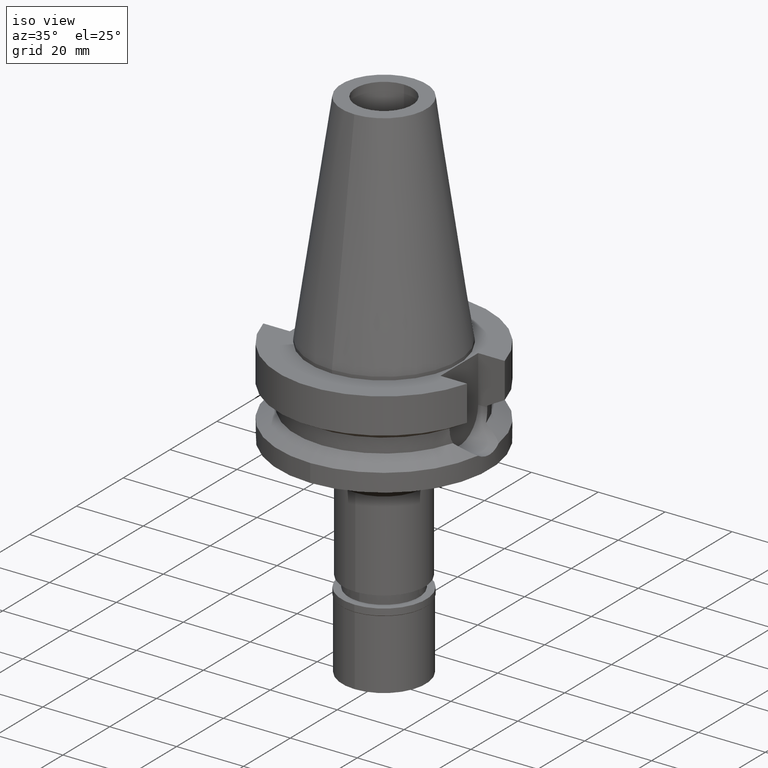
[diagram: clean part render]
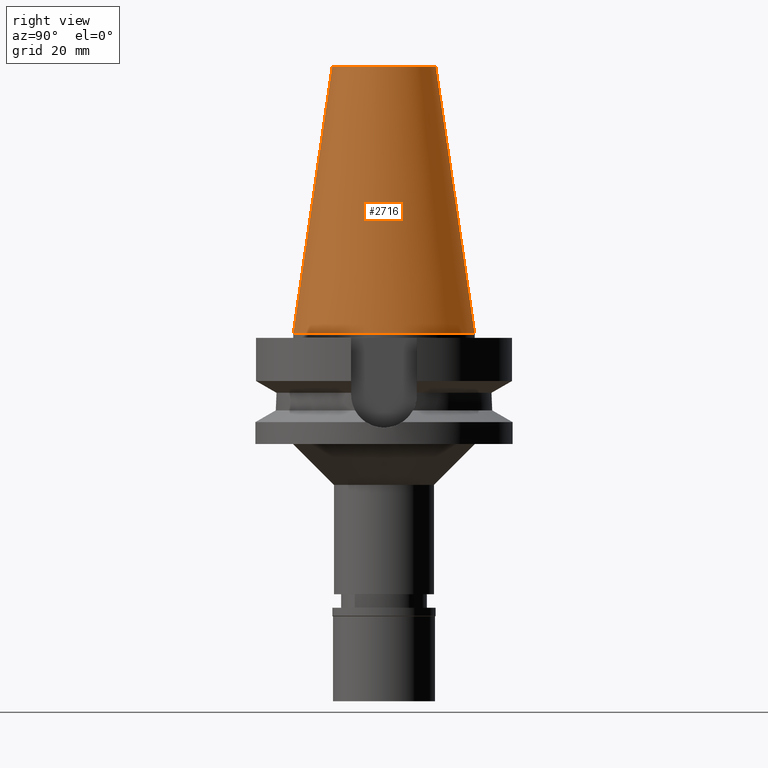
[diagram: tour spotlight — one face highlighted and labeled with its STEP entity id]
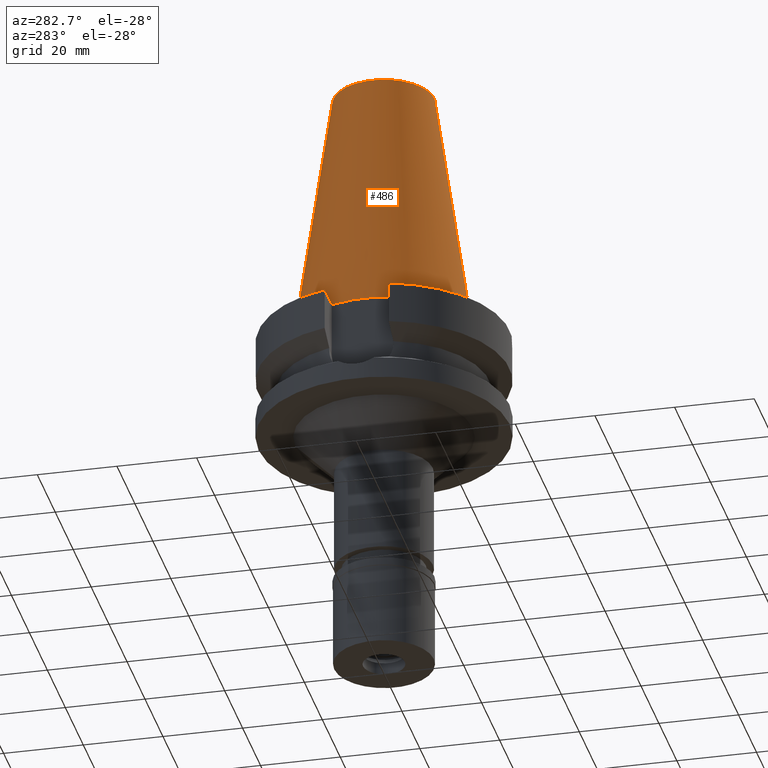
[diagram: tour spotlight — one face highlighted and labeled with its STEP entity id]
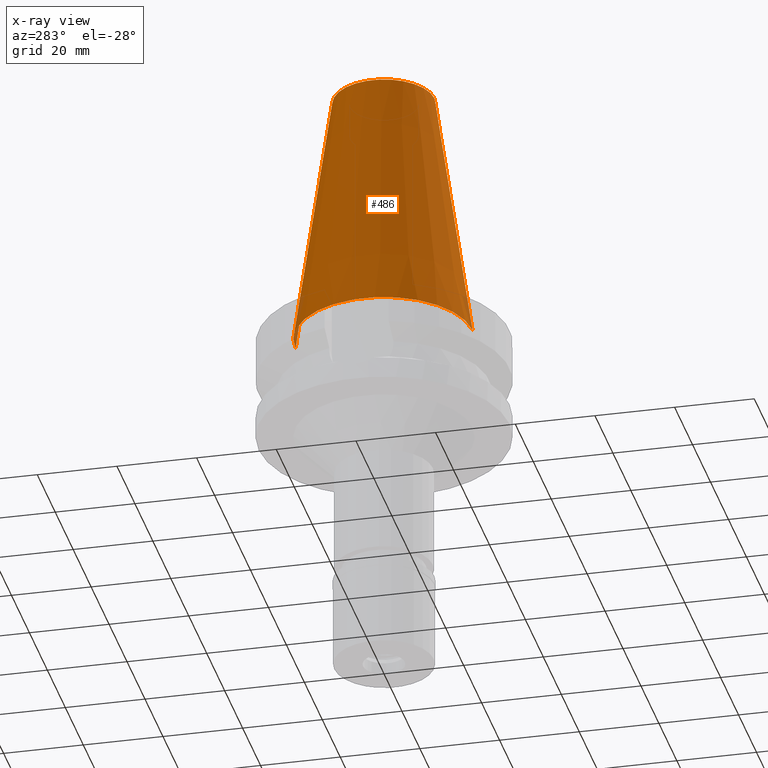
[diagram: x-ray of the same camera — body ghosted, this tour face saturated]
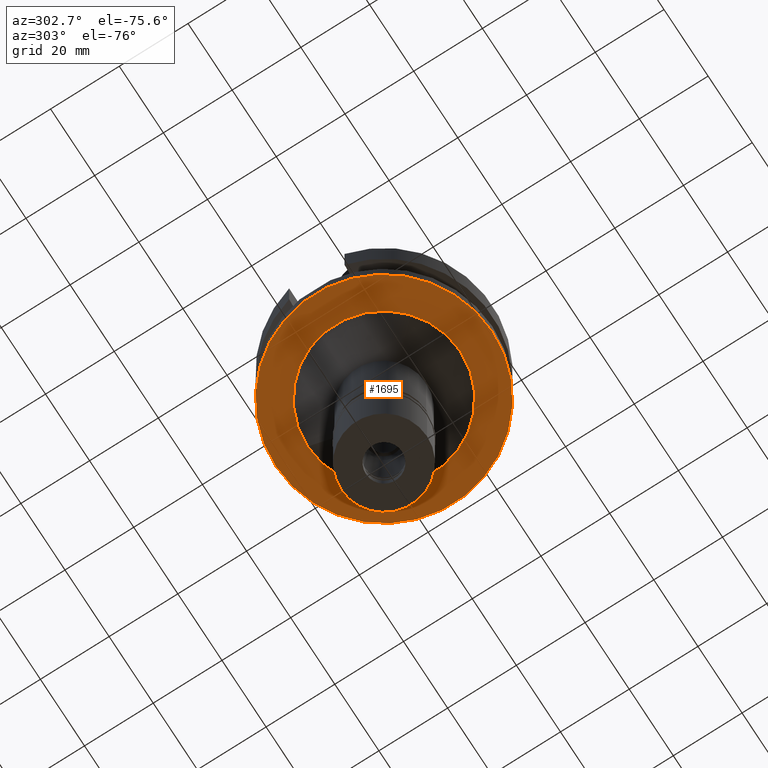
[diagram: tour spotlight — one face highlighted and labeled with its STEP entity id]
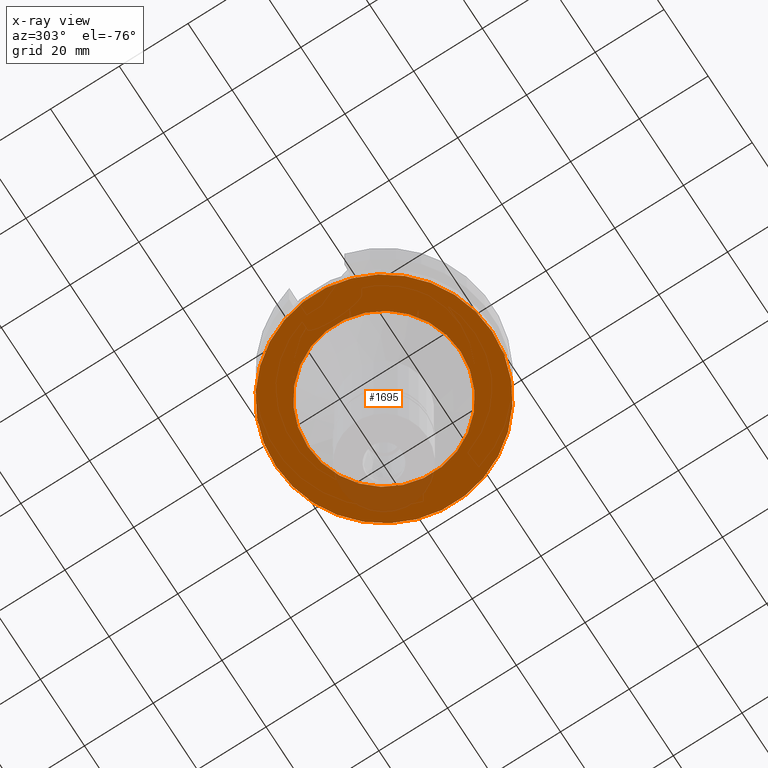
[diagram: x-ray of the same camera — body ghosted, this tour face saturated]
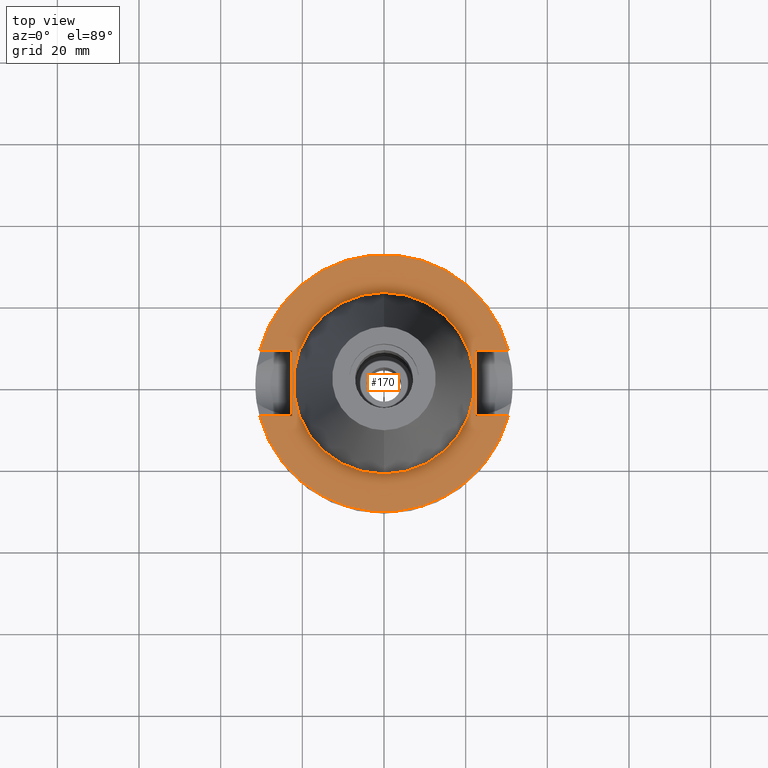
[diagram: tour spotlight — one face highlighted and labeled with its STEP entity id]
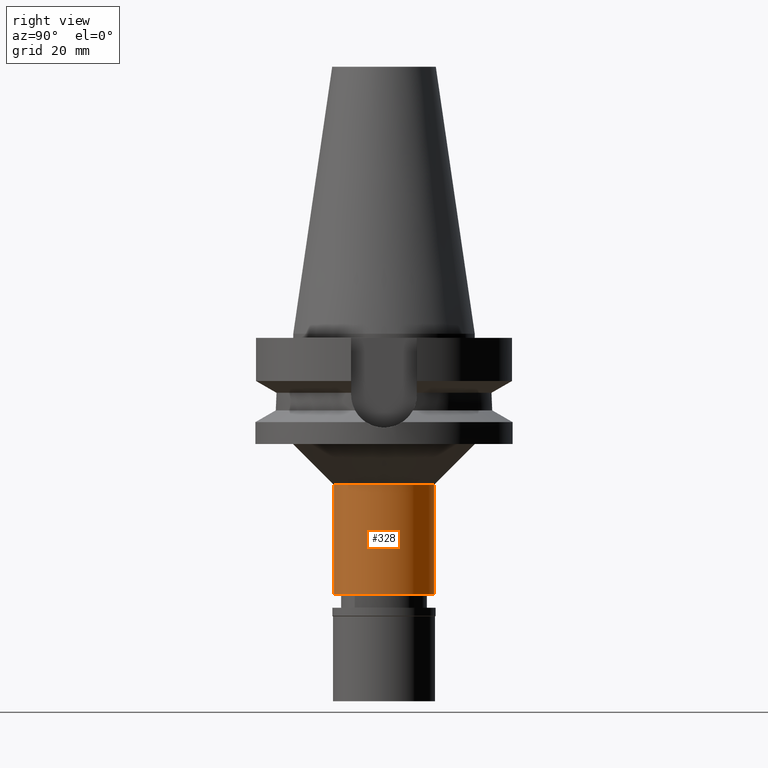
[diagram: tour spotlight — one face highlighted and labeled with its STEP entity id]
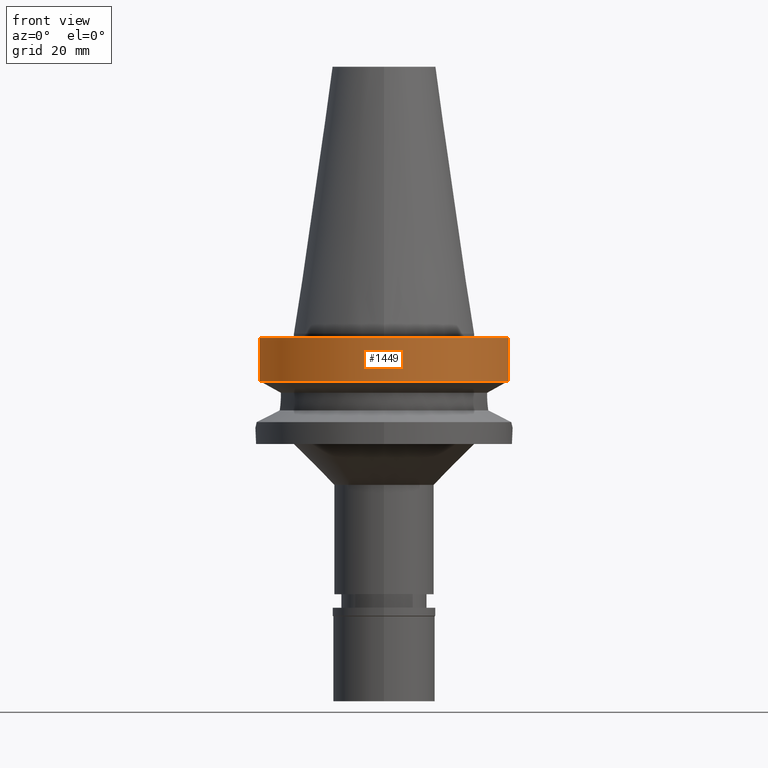
[diagram: tour spotlight — one face highlighted and labeled with its STEP entity id]
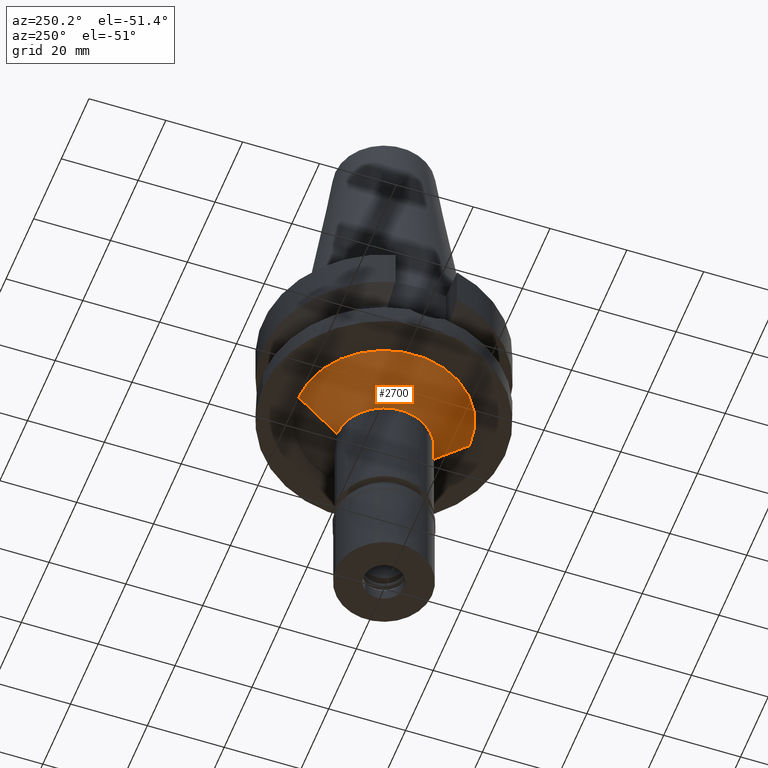
[diagram: tour spotlight — one face highlighted and labeled with its STEP entity id]
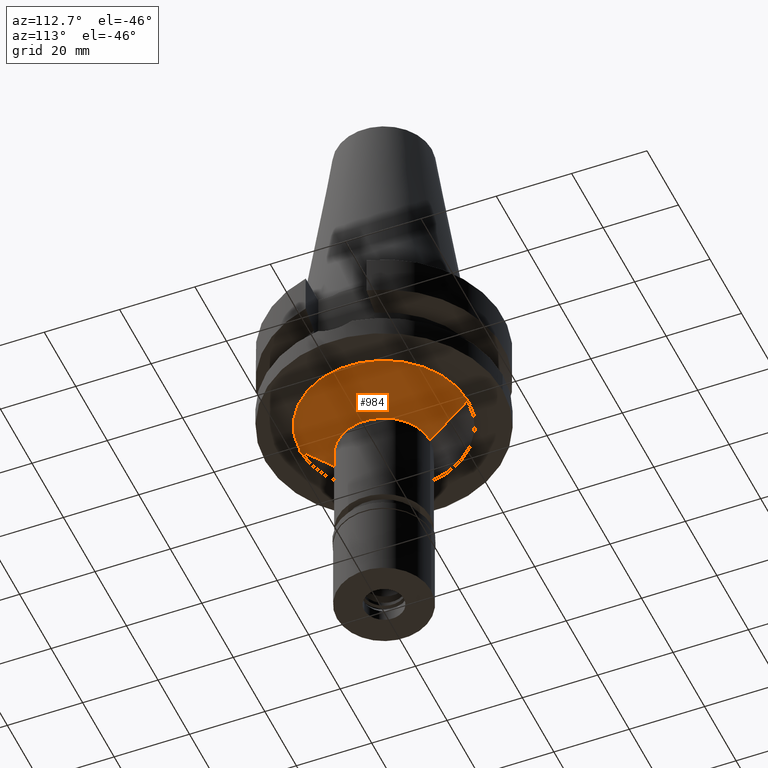
[diagram: tour spotlight — one face highlighted and labeled with its STEP entity id]
A machine part: a face-by-face anatomy tour. The part has 80 B-rep faces; the first image is the clean iso view, then the 8 largest visible faces are spotlighted one at a time (largest first), each with its STEP entity span.

Face 1 — right view, entity #2716. In plain terms, the highlighted conical surface has half-angle 8.297 deg.
Definition (entity closure, byte-faithful):
#8 = DIRECTION ( 'NONE',  ( 0.0000000000000000000, 1.000000000000000000, 0.0000000000000000000 ) ) ;
#77 = CARTESIAN_POINT ( 'NONE',  ( 0.0000000000000000000, -12.68766899429999917, 65.40000000000000568 ) ) ;
#203 = EDGE_CURVE ( 'NONE', #2226, #3088, #2822, .T. ) ;
#302 = LINE ( 'NONE', #1727, #1610 ) ;
#588 = CARTESIAN_POINT ( 'NONE',  ( 0.0000000000000000000, -22.22500000000000142, -2.273736754432000254E-13 ) ) ;
#802 = ORIENTED_EDGE ( 'NONE', *, *, #203, .F. ) ;
#821 = CONICAL_SURFACE ( 'NONE', #1229, 17.45633449714999941, 0.1448099680379422438 ) ;
#834 = DIRECTION ( 'NONE',  ( 0.0000000000000000000, 0.1443043893539925626, -0.9895333461855498891 ) ) ;
#933 = EDGE_CURVE ( 'NONE', #1222, #2316, #2573, .T. ) ;
#941 = DIRECTION ( 'NONE',  ( 0.0000000000000000000, 0.0000000000000000000, -1.000000000000000000 ) ) ;
#1038 = EDGE_CURVE ( 'NONE', #1222, #2226, #2933, .T. ) ;
#1203 = CARTESIAN_POINT ( 'NONE',  ( 0.0000000000000000000, 0.0000000000000000000, 65.40000000000000568 ) ) ;
#1222 = VERTEX_POINT ( 'NONE', #2460 ) ;
#1229 = AXIS2_PLACEMENT_3D ( 'NONE', #2327, #2817, #2341 ) ;
#1444 = DIRECTION ( 'NONE',  ( 0.0000000000000000000, 1.000000000000000000, 0.0000000000000000000 ) ) ;
#1610 = VECTOR ( 'NONE', #1710, 1000.000000000000114 ) ;
#1647 = CARTESIAN_POINT ( 'NONE',  ( 0.0000000000000000000, 0.0000000000000000000, -2.273736754432000254E-13 ) ) ;
#1710 = DIRECTION ( 'NONE',  ( 0.0000000000000000000, -0.1443043893539925626, -0.9895333461855498891 ) ) ;
#1727 = CARTESIAN_POINT ( 'NONE',  ( 0.0000000000000000000, -12.68766899429999917, 65.40000000000000568 ) ) ;
#1972 = CARTESIAN_POINT ( 'NONE',  ( 0.0000000000000000000, 22.22500000000000142, -7.105427357600999334E-14 ) ) ;
#2068 = AXIS2_PLACEMENT_3D ( 'NONE', #1203, #2161, #8 ) ;
#2111 = EDGE_LOOP ( 'NONE', ( #2160, #2801, #802, #3085 ) ) ;
#2160 = ORIENTED_EDGE ( 'NONE', *, *, #933, .T. ) ;
#2161 = DIRECTION ( 'NONE',  ( 0.0000000000000000000, 0.0000000000000000000, -1.000000000000000000 ) ) ;
#2226 = VERTEX_POINT ( 'NONE', #1972 ) ;
#2249 = CARTESIAN_POINT ( 'NONE',  ( 0.0000000000000000000, 12.68766899429999917, 65.40000000000000568 ) ) ;
#2316 = VERTEX_POINT ( 'NONE', #77 ) ;
#2327 = CARTESIAN_POINT ( 'NONE',  ( 0.0000000000000000000, 0.0000000000000000000, 32.70000000000000284 ) ) ;
#2341 = DIRECTION ( 'NONE',  ( 0.0000000000000000000, -1.000000000000000000, 0.0000000000000000000 ) ) ;
#2349 = EDGE_CURVE ( 'NONE', #2316, #3088, #302, .T. ) ;
#2460 = CARTESIAN_POINT ( 'NONE',  ( 0.0000000000000000000, 12.68766899429999917, 65.40000000000000568 ) ) ;
#2573 = CIRCLE ( 'NONE', #2068, 12.68766899429999917 ) ;
#2622 = AXIS2_PLACEMENT_3D ( 'NONE', #1647, #941, #1444 ) ;
#2716 = ADVANCED_FACE ( 'NONE', ( #3067 ), #821, .T. ) ;
#2801 = ORIENTED_EDGE ( 'NONE', *, *, #2349, .T. ) ;
#2817 = DIRECTION ( 'NONE',  ( 0.0000000000000000000, 0.0000000000000000000, -1.000000000000000000 ) ) ;
#2822 = CIRCLE ( 'NONE', #2622, 22.22500000000000142 ) ;
#2933 = LINE ( 'NONE', #2249, #3076 ) ;
#3067 = FACE_OUTER_BOUND ( 'NONE', #2111, .T. ) ;
#3076 = VECTOR ( 'NONE', #834, 1000.000000000000114 ) ;
#3085 = ORIENTED_EDGE ( 'NONE', *, *, #1038, .F. ) ;
#3088 = VERTEX_POINT ( 'NONE', #588 ) ;

Face 2 — auxiliary view, entity #486. An x-ray twin of the same camera follows (body ghosted, this face saturated) — the face is partly hidden behind the body. In plain terms, the highlighted conical surface has half-angle 8.297 deg.
Definition (entity closure, byte-faithful):
#77 = CARTESIAN_POINT ( 'NONE',  ( 0.0000000000000000000, -12.68766899429999917, 65.40000000000000568 ) ) ;
#298 = CIRCLE ( 'NONE', #2364, 12.68766899429999917 ) ;
#302 = LINE ( 'NONE', #1727, #1610 ) ;
#333 = DIRECTION ( 'NONE',  ( 0.0000000000000000000, -1.000000000000000000, 0.0000000000000000000 ) ) ;
#390 = ORIENTED_EDGE ( 'NONE', *, *, #2413, .F. ) ;
#434 = EDGE_LOOP ( 'NONE', ( #390, #2898, #1170, #1814 ) ) ;
#486 = ADVANCED_FACE ( 'NONE', ( #2753 ), #2112, .T. ) ;
#588 = CARTESIAN_POINT ( 'NONE',  ( 0.0000000000000000000, -22.22500000000000142, -2.273736754432000254E-13 ) ) ;
#649 = CARTESIAN_POINT ( 'NONE',  ( 0.0000000000000000000, 0.0000000000000000000, 32.70000000000000284 ) ) ;
#834 = DIRECTION ( 'NONE',  ( 0.0000000000000000000, 0.1443043893539925626, -0.9895333461855498891 ) ) ;
#858 = CIRCLE ( 'NONE', #1052, 22.22500000000000142 ) ;
#893 = DIRECTION ( 'NONE',  ( 0.0000000000000000000, -1.000000000000000000, 0.0000000000000000000 ) ) ;
#1038 = EDGE_CURVE ( 'NONE', #1222, #2226, #2933, .T. ) ;
#1052 = AXIS2_PLACEMENT_3D ( 'NONE', #2258, #2496, #333 ) ;
#1170 = ORIENTED_EDGE ( 'NONE', *, *, #2215, .T. ) ;
#1191 = CARTESIAN_POINT ( 'NONE',  ( 0.0000000000000000000, 0.0000000000000000000, 65.40000000000000568 ) ) ;
#1222 = VERTEX_POINT ( 'NONE', #2460 ) ;
#1610 = VECTOR ( 'NONE', #1710, 1000.000000000000114 ) ;
#1710 = DIRECTION ( 'NONE',  ( 0.0000000000000000000, -0.1443043893539925626, -0.9895333461855498891 ) ) ;
#1727 = CARTESIAN_POINT ( 'NONE',  ( 0.0000000000000000000, -12.68766899429999917, 65.40000000000000568 ) ) ;
#1814 = ORIENTED_EDGE ( 'NONE', *, *, #1038, .T. ) ;
#1854 = DIRECTION ( 'NONE',  ( 0.0000000000000000000, 0.0000000000000000000, -1.000000000000000000 ) ) ;
#1918 = DIRECTION ( 'NONE',  ( 0.0000000000000000000, 0.0000000000000000000, -1.000000000000000000 ) ) ;
#1972 = CARTESIAN_POINT ( 'NONE',  ( 0.0000000000000000000, 22.22500000000000142, -7.105427357600999334E-14 ) ) ;
#2112 = CONICAL_SURFACE ( 'NONE', #2924, 17.45633449714999941, 0.1448099680379422438 ) ;
#2215 = EDGE_CURVE ( 'NONE', #2316, #1222, #298, .T. ) ;
#2226 = VERTEX_POINT ( 'NONE', #1972 ) ;
#2249 = CARTESIAN_POINT ( 'NONE',  ( 0.0000000000000000000, 12.68766899429999917, 65.40000000000000568 ) ) ;
#2258 = CARTESIAN_POINT ( 'NONE',  ( 0.0000000000000000000, 0.0000000000000000000, -2.273736754432000254E-13 ) ) ;
#2316 = VERTEX_POINT ( 'NONE', #77 ) ;
#2349 = EDGE_CURVE ( 'NONE', #2316, #3088, #302, .T. ) ;
#2364 = AXIS2_PLACEMENT_3D ( 'NONE', #1191, #1918, #2881 ) ;
#2413 = EDGE_CURVE ( 'NONE', #3088, #2226, #858, .T. ) ;
#2460 = CARTESIAN_POINT ( 'NONE',  ( 0.0000000000000000000, 12.68766899429999917, 65.40000000000000568 ) ) ;
#2496 = DIRECTION ( 'NONE',  ( 0.0000000000000000000, 0.0000000000000000000, -1.000000000000000000 ) ) ;
#2753 = FACE_OUTER_BOUND ( 'NONE', #434, .T. ) ;
#2881 = DIRECTION ( 'NONE',  ( 0.0000000000000000000, -1.000000000000000000, 0.0000000000000000000 ) ) ;
#2898 = ORIENTED_EDGE ( 'NONE', *, *, #2349, .F. ) ;
#2924 = AXIS2_PLACEMENT_3D ( 'NONE', #649, #1854, #893 ) ;
#2933 = LINE ( 'NONE', #2249, #3076 ) ;
#3076 = VECTOR ( 'NONE', #834, 1000.000000000000114 ) ;
#3088 = VERTEX_POINT ( 'NONE', #588 ) ;

Face 3 — auxiliary view, entity #1695. An x-ray twin of the same camera follows (body ghosted, this face saturated) — the face is partly hidden behind the body. In plain terms, the highlighted planar face has unit normal (0, 0, -1).
Definition (entity closure, byte-faithful):
#110 = DIRECTION ( 'NONE',  ( 0.0000000000000000000, 0.0000000000000000000, 1.000000000000000000 ) ) ;
#135 = EDGE_CURVE ( 'NONE', #510, #424, #859, .T. ) ;
#176 = CARTESIAN_POINT ( 'NONE',  ( 0.0000000000000000000, 0.0000000000000000000, -27.00000000000000000 ) ) ;
#195 = FACE_BOUND ( 'NONE', #1183, .T. ) ;
#366 = CARTESIAN_POINT ( 'NONE',  ( 0.0000000000000000000, -22.25000000000000000, -27.00000000000000000 ) ) ;
#375 = CIRCLE ( 'NONE', #1432, 31.50000000000000000 ) ;
#380 = CARTESIAN_POINT ( 'NONE',  ( 0.0000000000000000000, 0.0000000000000000000, -27.00000000000000000 ) ) ;
#419 = ORIENTED_EDGE ( 'NONE', *, *, #135, .F. ) ;
#424 = VERTEX_POINT ( 'NONE', #366 ) ;
#510 = VERTEX_POINT ( 'NONE', #843 ) ;
#609 = VERTEX_POINT ( 'NONE', #2042 ) ;
#643 = AXIS2_PLACEMENT_3D ( 'NONE', #2955, #1962, #2675 ) ;
#688 = CARTESIAN_POINT ( 'NONE',  ( 0.0000000000000000000, 0.0000000000000000000, -27.00000000000000000 ) ) ;
#700 = DIRECTION ( 'NONE',  ( 0.0000000000000000000, 1.000000000000000000, 0.0000000000000000000 ) ) ;
#843 = CARTESIAN_POINT ( 'NONE',  ( 0.0000000000000000000, 22.25000000000000000, -27.00000000000000000 ) ) ;
#859 = CIRCLE ( 'NONE', #908, 22.25000000000000000 ) ;
#900 = DIRECTION ( 'NONE',  ( 0.0000000000000000000, 0.0000000000000000000, -1.000000000000000000 ) ) ;
#908 = AXIS2_PLACEMENT_3D ( 'NONE', #2355, #2579, #700 ) ;
#1009 = ORIENTED_EDGE ( 'NONE', *, *, #2586, .F. ) ;
#1047 = AXIS2_PLACEMENT_3D ( 'NONE', #688, #900, #1862 ) ;
#1183 = EDGE_LOOP ( 'NONE', ( #419, #1207 ) ) ;
#1196 = EDGE_LOOP ( 'NONE', ( #1009, #1400 ) ) ;
#1207 = ORIENTED_EDGE ( 'NONE', *, *, #1823, .F. ) ;
#1400 = ORIENTED_EDGE ( 'NONE', *, *, #1547, .F. ) ;
#1432 = AXIS2_PLACEMENT_3D ( 'NONE', #176, #1812, #2293 ) ;
#1456 = CIRCLE ( 'NONE', #1555, 31.50000000000000000 ) ;
#1547 = EDGE_CURVE ( 'NONE', #609, #2330, #1456, .T. ) ;
#1555 = AXIS2_PLACEMENT_3D ( 'NONE', #380, #110, #2035 ) ;
#1695 = ADVANCED_FACE ( 'NONE', ( #2088, #195 ), #3056, .T. ) ;
#1812 = DIRECTION ( 'NONE',  ( 0.0000000000000000000, 0.0000000000000000000, 1.000000000000000000 ) ) ;
#1823 = EDGE_CURVE ( 'NONE', #424, #510, #1955, .T. ) ;
#1862 = DIRECTION ( 'NONE',  ( 0.0000000000000000000, -1.000000000000000000, 0.0000000000000000000 ) ) ;
#1955 = CIRCLE ( 'NONE', #643, 22.25000000000000000 ) ;
#1962 = DIRECTION ( 'NONE',  ( 0.0000000000000000000, 0.0000000000000000000, -1.000000000000000000 ) ) ;
#2035 = DIRECTION ( 'NONE',  ( 0.0000000000000000000, -1.000000000000000000, 0.0000000000000000000 ) ) ;
#2042 = CARTESIAN_POINT ( 'NONE',  ( 0.0000000000000000000, -31.50000000000000000, -27.00000000000000000 ) ) ;
#2088 = FACE_OUTER_BOUND ( 'NONE', #1196, .T. ) ;
#2293 = DIRECTION ( 'NONE',  ( 0.0000000000000000000, 1.000000000000000000, 0.0000000000000000000 ) ) ;
#2330 = VERTEX_POINT ( 'NONE', #2952 ) ;
#2355 = CARTESIAN_POINT ( 'NONE',  ( 0.0000000000000000000, 0.0000000000000000000, -27.00000000000000000 ) ) ;
#2579 = DIRECTION ( 'NONE',  ( 0.0000000000000000000, 0.0000000000000000000, -1.000000000000000000 ) ) ;
#2586 = EDGE_CURVE ( 'NONE', #2330, #609, #375, .T. ) ;
#2675 = DIRECTION ( 'NONE',  ( 0.0000000000000000000, -1.000000000000000000, 0.0000000000000000000 ) ) ;
#2952 = CARTESIAN_POINT ( 'NONE',  ( 0.0000000000000000000, 31.50000000000000000, -27.00000000000000000 ) ) ;
#2955 = CARTESIAN_POINT ( 'NONE',  ( 0.0000000000000000000, 0.0000000000000000000, -27.00000000000000000 ) ) ;
#3056 = PLANE ( 'NONE',  #1047 ) ;

Face 4 — top view, entity #170. In plain terms, the highlighted planar face has unit normal (0, 0, -1).
Definition (entity closure, byte-faithful):
#46 = VECTOR ( 'NONE', #1078, 1000.000000000000000 ) ;
#143 = VECTOR ( 'NONE', #2532, 1000.000000000000000 ) ;
#158 = CARTESIAN_POINT ( 'NONE',  ( 22.50000000000000000, 8.050000000000000711, -1.000000000000000000 ) ) ;
#170 = ADVANCED_FACE ( 'NONE', ( #665, #2882 ), #1919, .F. ) ;
#186 = CARTESIAN_POINT ( 'NONE',  ( 0.0000000000000000000, 0.0000000000000000000, -1.000000000000000000 ) ) ;
#230 = VERTEX_POINT ( 'NONE', #2403 ) ;
#296 = CIRCLE ( 'NONE', #2105, 31.50000000000000000 ) ;
#349 = AXIS2_PLACEMENT_3D ( 'NONE', #1269, #2227, #2718 ) ;
#350 = CARTESIAN_POINT ( 'NONE',  ( 22.50000000000000000, -8.050000000000000711, -1.000000000000000000 ) ) ;
#360 = DIRECTION ( 'NONE',  ( 1.000000000000000000, 3.550916904668000126E-14, 0.0000000000000000000 ) ) ;
#409 = VECTOR ( 'NONE', #360, 1000.000000000000000 ) ;
#411 = CARTESIAN_POINT ( 'NONE',  ( -30.45402272279000044, 8.050000000000000711, -1.000000000000000000 ) ) ;
#426 = DIRECTION ( 'NONE',  ( 0.0000000000000000000, -1.000000000000000000, 0.0000000000000000000 ) ) ;
#429 = EDGE_CURVE ( 'NONE', #230, #1161, #2531, .T. ) ;
#433 = DIRECTION ( 'NONE',  ( 0.0000000000000000000, -1.000000000000000000, 0.0000000000000000000 ) ) ;
#467 = EDGE_CURVE ( 'NONE', #2288, #2564, #2513, .T. ) ;
#494 = DIRECTION ( 'NONE',  ( 0.0000000000000000000, 0.0000000000000000000, 1.000000000000000000 ) ) ;
#523 = CARTESIAN_POINT ( 'NONE',  ( 0.0000000000000000000, 0.0000000000000000000, -1.000000000000000000 ) ) ;
#570 = DIRECTION ( 'NONE',  ( 1.000000000000000000, -3.550916904668000126E-14, 0.0000000000000000000 ) ) ;
#571 = ORIENTED_EDGE ( 'NONE', *, *, #1058, .T. ) ;
#605 = LINE ( 'NONE', #1572, #143 ) ;
#611 = ORIENTED_EDGE ( 'NONE', *, *, #2096, .F. ) ;
#665 = FACE_OUTER_BOUND ( 'NONE', #696, .T. ) ;
#696 = EDGE_LOOP ( 'NONE', ( #1153, #2684, #1231, #1560, #1056, #2273, #571, #1327 ) ) ;
#706 = VERTEX_POINT ( 'NONE', #2602 ) ;
#787 = CARTESIAN_POINT ( 'NONE',  ( 22.50000000000000000, -8.050000000000000711, -1.000000000000000000 ) ) ;
#926 = DIRECTION ( 'NONE',  ( 0.0000000000000000000, 0.0000000000000000000, -1.000000000000000000 ) ) ;
#1002 = CIRCLE ( 'NONE', #349, 31.50000000000000000 ) ;
#1010 = AXIS2_PLACEMENT_3D ( 'NONE', #523, #494, #2416 ) ;
#1056 = ORIENTED_EDGE ( 'NONE', *, *, #429, .T. ) ;
#1058 = EDGE_CURVE ( 'NONE', #1675, #2400, #1783, .T. ) ;
#1078 = DIRECTION ( 'NONE',  ( 1.000000000000000000, 3.595582526110999949E-14, 0.0000000000000000000 ) ) ;
#1083 = CARTESIAN_POINT ( 'NONE',  ( 30.45402272279000044, -8.050000000000000711, -1.000000000000000000 ) ) ;
#1115 = CARTESIAN_POINT ( 'NONE',  ( 30.45402272279000044, 8.050000000000000711, -1.000000000000000000 ) ) ;
#1153 = ORIENTED_EDGE ( 'NONE', *, *, #1428, .F. ) ;
#1158 = DIRECTION ( 'NONE',  ( 0.0000000000000000000, -1.000000000000000000, 0.0000000000000000000 ) ) ;
#1161 = VERTEX_POINT ( 'NONE', #1115 ) ;
#1209 = DIRECTION ( 'NONE',  ( 0.0000000000000000000, 0.0000000000000000000, 1.000000000000000000 ) ) ;
#1221 = EDGE_CURVE ( 'NONE', #2456, #1638, #2927, .T. ) ;
#1231 = ORIENTED_EDGE ( 'NONE', *, *, #467, .F. ) ;
#1269 = CARTESIAN_POINT ( 'NONE',  ( 0.0000000000000000000, 0.0000000000000000000, -1.000000000000000000 ) ) ;
#1325 = VERTEX_POINT ( 'NONE', #2652 ) ;
#1327 = ORIENTED_EDGE ( 'NONE', *, *, #1965, .F. ) ;
#1428 = EDGE_CURVE ( 'NONE', #1325, #706, #1999, .T. ) ;
#1560 = ORIENTED_EDGE ( 'NONE', *, *, #1620, .F. ) ;
#1564 = CIRCLE ( 'NONE', #2966, 22.22500000000000142 ) ;
#1572 = CARTESIAN_POINT ( 'NONE',  ( -22.50000000000000000, -8.050000000000000711, -1.000000000000000000 ) ) ;
#1620 = EDGE_CURVE ( 'NONE', #230, #2288, #1846, .T. ) ;
#1633 = CARTESIAN_POINT ( 'NONE',  ( 0.0000000000000000000, 0.0000000000000000000, -1.000000000000000000 ) ) ;
#1638 = VERTEX_POINT ( 'NONE', #1882 ) ;
#1675 = VERTEX_POINT ( 'NONE', #411 ) ;
#1706 = VECTOR ( 'NONE', #570, 1000.000000000000000 ) ;
#1762 = CARTESIAN_POINT ( 'NONE',  ( 0.0000000000000000000, 22.22500000000000142, -1.000000000000000000 ) ) ;
#1783 = LINE ( 'NONE', #2523, #409 ) ;
#1809 = VECTOR ( 'NONE', #426, 1000.000000000000000 ) ;
#1846 = LINE ( 'NONE', #158, #1809 ) ;
#1853 = DIRECTION ( 'NONE',  ( 0.0000000000000000000, 1.000000000000000000, 0.0000000000000000000 ) ) ;
#1866 = AXIS2_PLACEMENT_3D ( 'NONE', #1633, #926, #433 ) ;
#1868 = VECTOR ( 'NONE', #3002, 1000.000000000000000 ) ;
#1882 = CARTESIAN_POINT ( 'NONE',  ( 0.0000000000000000000, -22.22500000000000142, -1.000000000000000000 ) ) ;
#1894 = EDGE_CURVE ( 'NONE', #1675, #1161, #296, .T. ) ;
#1899 = ORIENTED_EDGE ( 'NONE', *, *, #1221, .F. ) ;
#1919 = PLANE ( 'NONE',  #1866 ) ;
#1965 = EDGE_CURVE ( 'NONE', #706, #2400, #605, .T. ) ;
#1999 = LINE ( 'NONE', #2050, #1706 ) ;
#2024 = CARTESIAN_POINT ( 'NONE',  ( 22.50000000000000000, 8.050000000000000711, -1.000000000000000000 ) ) ;
#2050 = CARTESIAN_POINT ( 'NONE',  ( -30.45402272279000044, -8.050000000000000711, -1.000000000000000000 ) ) ;
#2096 = EDGE_CURVE ( 'NONE', #1638, #2456, #1564, .T. ) ;
#2105 = AXIS2_PLACEMENT_3D ( 'NONE', #2304, #2989, #1853 ) ;
#2227 = DIRECTION ( 'NONE',  ( 0.0000000000000000000, 0.0000000000000000000, -1.000000000000000000 ) ) ;
#2273 = ORIENTED_EDGE ( 'NONE', *, *, #1894, .F. ) ;
#2281 = EDGE_LOOP ( 'NONE', ( #1899, #611 ) ) ;
#2288 = VERTEX_POINT ( 'NONE', #787 ) ;
#2304 = CARTESIAN_POINT ( 'NONE',  ( 0.0000000000000000000, 0.0000000000000000000, -1.000000000000000000 ) ) ;
#2373 = EDGE_CURVE ( 'NONE', #2564, #1325, #1002, .T. ) ;
#2400 = VERTEX_POINT ( 'NONE', #2420 ) ;
#2403 = CARTESIAN_POINT ( 'NONE',  ( 22.50000000000000000, 8.050000000000000711, -1.000000000000000000 ) ) ;
#2416 = DIRECTION ( 'NONE',  ( 0.0000000000000000000, 1.000000000000000000, 0.0000000000000000000 ) ) ;
#2420 = CARTESIAN_POINT ( 'NONE',  ( -22.50000000000000000, 8.050000000000000711, -1.000000000000000000 ) ) ;
#2456 = VERTEX_POINT ( 'NONE', #1762 ) ;
#2513 = LINE ( 'NONE', #350, #46 ) ;
#2523 = CARTESIAN_POINT ( 'NONE',  ( -30.45402272279000044, 8.050000000000000711, -1.000000000000000000 ) ) ;
#2531 = LINE ( 'NONE', #2024, #1868 ) ;
#2532 = DIRECTION ( 'NONE',  ( 0.0000000000000000000, 1.000000000000000000, 0.0000000000000000000 ) ) ;
#2564 = VERTEX_POINT ( 'NONE', #1083 ) ;
#2602 = CARTESIAN_POINT ( 'NONE',  ( -22.50000000000000000, -8.050000000000000711, -1.000000000000000000 ) ) ;
#2652 = CARTESIAN_POINT ( 'NONE',  ( -30.45402272279000044, -8.050000000000000711, -1.000000000000000000 ) ) ;
#2684 = ORIENTED_EDGE ( 'NONE', *, *, #2373, .F. ) ;
#2718 = DIRECTION ( 'NONE',  ( 0.0000000000000000000, -1.000000000000000000, 0.0000000000000000000 ) ) ;
#2882 = FACE_BOUND ( 'NONE', #2281, .T. ) ;
#2927 = CIRCLE ( 'NONE', #1010, 22.22500000000000142 ) ;
#2966 = AXIS2_PLACEMENT_3D ( 'NONE', #186, #1209, #1158 ) ;
#2989 = DIRECTION ( 'NONE',  ( 0.0000000000000000000, 0.0000000000000000000, -1.000000000000000000 ) ) ;
#3002 = DIRECTION ( 'NONE',  ( 1.000000000000000000, -3.506251283225999947E-14, 0.0000000000000000000 ) ) ;

Face 5 — right view, entity #328. In plain terms, the highlighted cylindrical surface (partial cylindrical patch) has radius 12.25 mm, axis along (0, 0, -1).
Definition (entity closure, byte-faithful):
#167 = LINE ( 'NONE', #3057, #2423 ) ;
#202 = CARTESIAN_POINT ( 'NONE',  ( 0.0000000000000000000, 12.25000000000000000, -37.00000000000000000 ) ) ;
#218 = CARTESIAN_POINT ( 'NONE',  ( 0.0000000000000000000, -12.25000000000000000, -37.00000000000000000 ) ) ;
#275 = ORIENTED_EDGE ( 'NONE', *, *, #1928, .T. ) ;
#318 = FACE_OUTER_BOUND ( 'NONE', #512, .T. ) ;
#328 = ADVANCED_FACE ( 'NONE', ( #318 ), #1225, .T. ) ;
#512 = EDGE_LOOP ( 'NONE', ( #1476, #829, #275, #980 ) ) ;
#599 = CIRCLE ( 'NONE', #745, 12.25000000000000000 ) ;
#629 = DIRECTION ( 'NONE',  ( 0.0000000000000000000, 0.0000000000000000000, -1.000000000000000000 ) ) ;
#666 = CARTESIAN_POINT ( 'NONE',  ( 0.0000000000000000000, 12.25000000000000000, -63.79999999999999716 ) ) ;
#729 = EDGE_CURVE ( 'NONE', #2209, #2919, #167, .T. ) ;
#745 = AXIS2_PLACEMENT_3D ( 'NONE', #2325, #827, #2277 ) ;
#827 = DIRECTION ( 'NONE',  ( 0.0000000000000000000, 0.0000000000000000000, 1.000000000000000000 ) ) ;
#829 = ORIENTED_EDGE ( 'NONE', *, *, #729, .T. ) ;
#928 = CARTESIAN_POINT ( 'NONE',  ( 0.0000000000000000000, -12.25000000000000000, -63.79999999999999716 ) ) ;
#980 = ORIENTED_EDGE ( 'NONE', *, *, #995, .F. ) ;
#995 = EDGE_CURVE ( 'NONE', #2205, #2687, #1292, .T. ) ;
#1042 = DIRECTION ( 'NONE',  ( 0.0000000000000000000, -1.000000000000000000, 0.0000000000000000000 ) ) ;
#1225 = CYLINDRICAL_SURFACE ( 'NONE', #2317, 12.25000000000000000 ) ;
#1292 = LINE ( 'NONE', #2730, #3125 ) ;
#1334 = EDGE_CURVE ( 'NONE', #2205, #2209, #2728, .T. ) ;
#1476 = ORIENTED_EDGE ( 'NONE', *, *, #1334, .T. ) ;
#1928 = EDGE_CURVE ( 'NONE', #2919, #2687, #599, .T. ) ;
#2205 = VERTEX_POINT ( 'NONE', #202 ) ;
#2208 = DIRECTION ( 'NONE',  ( 0.0000000000000000000, 1.000000000000000000, 0.0000000000000000000 ) ) ;
#2209 = VERTEX_POINT ( 'NONE', #218 ) ;
#2213 = DIRECTION ( 'NONE',  ( 0.0000000000000000000, 0.0000000000000000000, -1.000000000000000000 ) ) ;
#2244 = CARTESIAN_POINT ( 'NONE',  ( 0.0000000000000000000, 0.0000000000000000000, 0.0000000000000000000 ) ) ;
#2277 = DIRECTION ( 'NONE',  ( 0.0000000000000000000, -1.000000000000000000, 0.0000000000000000000 ) ) ;
#2317 = AXIS2_PLACEMENT_3D ( 'NONE', #2244, #2213, #1042 ) ;
#2325 = CARTESIAN_POINT ( 'NONE',  ( 0.0000000000000000000, 0.0000000000000000000, -63.79999999999999716 ) ) ;
#2423 = VECTOR ( 'NONE', #629, 1000.000000000000000 ) ;
#2426 = AXIS2_PLACEMENT_3D ( 'NONE', #2936, #2713, #2208 ) ;
#2687 = VERTEX_POINT ( 'NONE', #666 ) ;
#2713 = DIRECTION ( 'NONE',  ( 0.0000000000000000000, 0.0000000000000000000, -1.000000000000000000 ) ) ;
#2728 = CIRCLE ( 'NONE', #2426, 12.25000000000000000 ) ;
#2730 = CARTESIAN_POINT ( 'NONE',  ( 0.0000000000000000000, 12.25000000000000000, -37.00000000000000000 ) ) ;
#2919 = VERTEX_POINT ( 'NONE', #928 ) ;
#2936 = CARTESIAN_POINT ( 'NONE',  ( 0.0000000000000000000, 0.0000000000000000000, -37.00000000000000000 ) ) ;
#2946 = DIRECTION ( 'NONE',  ( 0.0000000000000000000, 0.0000000000000000000, -1.000000000000000000 ) ) ;
#3057 = CARTESIAN_POINT ( 'NONE',  ( 0.0000000000000000000, -12.25000000000000000, -37.00000000000000000 ) ) ;
#3125 = VECTOR ( 'NONE', #2946, 1000.000000000000000 ) ;

Face 6 — front view, entity #1449. In plain terms, the highlighted cylindrical surface (partial cylindrical patch) has radius 31.5 mm, axis along (0, 0, -1).
Definition (entity closure, byte-faithful):
#48 = CARTESIAN_POINT ( 'NONE',  ( 0.0000000000000000000, 0.0000000000000000000, -11.56550565266999975 ) ) ;
#64 = DIRECTION ( 'NONE',  ( 0.0000000000000000000, -1.000000000000000000, 0.0000000000000000000 ) ) ;
#91 = CYLINDRICAL_SURFACE ( 'NONE', #2159, 31.50000000000000000 ) ;
#95 = EDGE_CURVE ( 'NONE', #1114, #1325, #960, .T. ) ;
#132 = CARTESIAN_POINT ( 'NONE',  ( 30.45402272279000044, -8.050000000000000711, -1.000000000000000000 ) ) ;
#156 = VECTOR ( 'NONE', #337, 1000.000000000000114 ) ;
#337 = DIRECTION ( 'NONE',  ( -1.037804642007017528E-07, -3.926122126661067595E-07, -0.9999999999999175104 ) ) ;
#342 = EDGE_CURVE ( 'NONE', #1114, #1284, #1315, .T. ) ;
#349 = AXIS2_PLACEMENT_3D ( 'NONE', #1269, #2227, #2718 ) ;
#547 = ORIENTED_EDGE ( 'NONE', *, *, #2373, .T. ) ;
#554 = FACE_OUTER_BOUND ( 'NONE', #2625, .T. ) ;
#564 = EDGE_CURVE ( 'NONE', #2564, #1284, #2517, .T. ) ;
#784 = CARTESIAN_POINT ( 'NONE',  ( 30.45402272279000044, -8.049999999999000622, -11.56550565266999975 ) ) ;
#867 = CARTESIAN_POINT ( 'NONE',  ( -30.45402291403999584, -8.049999276451000441, -11.56551216951999805 ) ) ;
#960 = LINE ( 'NONE', #1159, #1362 ) ;
#1002 = CIRCLE ( 'NONE', #349, 31.50000000000000000 ) ;
#1083 = CARTESIAN_POINT ( 'NONE',  ( 30.45402272279000044, -8.050000000000000711, -1.000000000000000000 ) ) ;
#1089 = DIRECTION ( 'NONE',  ( 0.0000000000000000000, -1.000000000000000000, 0.0000000000000000000 ) ) ;
#1101 = ORIENTED_EDGE ( 'NONE', *, *, #564, .F. ) ;
#1114 = VERTEX_POINT ( 'NONE', #867 ) ;
#1159 = CARTESIAN_POINT ( 'NONE',  ( -30.45402291403999584, -8.049999276451000441, -11.56551216951999805 ) ) ;
#1269 = CARTESIAN_POINT ( 'NONE',  ( 0.0000000000000000000, 0.0000000000000000000, -1.000000000000000000 ) ) ;
#1284 = VERTEX_POINT ( 'NONE', #784 ) ;
#1315 = CIRCLE ( 'NONE', #3072, 31.50000000000000000 ) ;
#1325 = VERTEX_POINT ( 'NONE', #2652 ) ;
#1362 = VECTOR ( 'NONE', #2340, 1000.000000000000114 ) ;
#1449 = ADVANCED_FACE ( 'NONE', ( #554 ), #91, .T. ) ;
#1604 = ORIENTED_EDGE ( 'NONE', *, *, #95, .F. ) ;
#1841 = ORIENTED_EDGE ( 'NONE', *, *, #342, .T. ) ;
#2159 = AXIS2_PLACEMENT_3D ( 'NONE', #2780, #2963, #1089 ) ;
#2227 = DIRECTION ( 'NONE',  ( 0.0000000000000000000, 0.0000000000000000000, -1.000000000000000000 ) ) ;
#2340 = DIRECTION ( 'NONE',  ( 1.810202628270990259E-08, -6.848216365541962858E-08, 0.9999999999999974465 ) ) ;
#2373 = EDGE_CURVE ( 'NONE', #2564, #1325, #1002, .T. ) ;
#2421 = DIRECTION ( 'NONE',  ( 0.0000000000000000000, 0.0000000000000000000, 1.000000000000000000 ) ) ;
#2517 = LINE ( 'NONE', #132, #156 ) ;
#2564 = VERTEX_POINT ( 'NONE', #1083 ) ;
#2625 = EDGE_LOOP ( 'NONE', ( #1604, #1841, #1101, #547 ) ) ;
#2652 = CARTESIAN_POINT ( 'NONE',  ( -30.45402272279000044, -8.050000000000000711, -1.000000000000000000 ) ) ;
#2718 = DIRECTION ( 'NONE',  ( 0.0000000000000000000, -1.000000000000000000, 0.0000000000000000000 ) ) ;
#2780 = CARTESIAN_POINT ( 'NONE',  ( 0.0000000000000000000, 0.0000000000000000000, 0.0000000000000000000 ) ) ;
#2963 = DIRECTION ( 'NONE',  ( 0.0000000000000000000, 0.0000000000000000000, -1.000000000000000000 ) ) ;
#3072 = AXIS2_PLACEMENT_3D ( 'NONE', #48, #2421, #64 ) ;

Face 7 — auxiliary view, entity #2700. In plain terms, the highlighted conical surface has half-angle 45 deg.
Definition (entity closure, byte-faithful):
#10 = CONICAL_SURFACE ( 'NONE', #1781, 17.25000000000000000, 0.7853981633972997312 ) ;
#16 = CARTESIAN_POINT ( 'NONE',  ( 0.0000000000000000000, 22.25000000000000000, -27.00000000000000000 ) ) ;
#30 = DIRECTION ( 'NONE',  ( 0.0000000000000000000, -0.7071067811865474617, -0.7071067811865474617 ) ) ;
#190 = DIRECTION ( 'NONE',  ( 0.0000000000000000000, 0.0000000000000000000, 1.000000000000000000 ) ) ;
#202 = CARTESIAN_POINT ( 'NONE',  ( 0.0000000000000000000, 12.25000000000000000, -37.00000000000000000 ) ) ;
#214 = CARTESIAN_POINT ( 'NONE',  ( 0.0000000000000000000, -22.25000000000000000, -27.00000000000000000 ) ) ;
#218 = CARTESIAN_POINT ( 'NONE',  ( 0.0000000000000000000, -12.25000000000000000, -37.00000000000000000 ) ) ;
#254 = LINE ( 'NONE', #16, #3019 ) ;
#291 = AXIS2_PLACEMENT_3D ( 'NONE', #1105, #1074, #1283 ) ;
#366 = CARTESIAN_POINT ( 'NONE',  ( 0.0000000000000000000, -22.25000000000000000, -27.00000000000000000 ) ) ;
#424 = VERTEX_POINT ( 'NONE', #366 ) ;
#510 = VERTEX_POINT ( 'NONE', #843 ) ;
#536 = ORIENTED_EDGE ( 'NONE', *, *, #804, .F. ) ;
#643 = AXIS2_PLACEMENT_3D ( 'NONE', #2955, #1962, #2675 ) ;
#685 = ORIENTED_EDGE ( 'NONE', *, *, #2344, .T. ) ;
#689 = LINE ( 'NONE', #214, #2629 ) ;
#750 = ORIENTED_EDGE ( 'NONE', *, *, #1823, .T. ) ;
#804 = EDGE_CURVE ( 'NONE', #424, #2209, #689, .T. ) ;
#843 = CARTESIAN_POINT ( 'NONE',  ( 0.0000000000000000000, 22.25000000000000000, -27.00000000000000000 ) ) ;
#1074 = DIRECTION ( 'NONE',  ( 0.0000000000000000000, 0.0000000000000000000, -1.000000000000000000 ) ) ;
#1105 = CARTESIAN_POINT ( 'NONE',  ( 0.0000000000000000000, 0.0000000000000000000, -37.00000000000000000 ) ) ;
#1283 = DIRECTION ( 'NONE',  ( 0.0000000000000000000, -1.000000000000000000, 0.0000000000000000000 ) ) ;
#1407 = EDGE_CURVE ( 'NONE', #2209, #2205, #2711, .T. ) ;
#1781 = AXIS2_PLACEMENT_3D ( 'NONE', #2535, #190, #2562 ) ;
#1823 = EDGE_CURVE ( 'NONE', #424, #510, #1955, .T. ) ;
#1955 = CIRCLE ( 'NONE', #643, 22.25000000000000000 ) ;
#1962 = DIRECTION ( 'NONE',  ( 0.0000000000000000000, 0.0000000000000000000, -1.000000000000000000 ) ) ;
#2142 = EDGE_LOOP ( 'NONE', ( #2442, #536, #750, #685 ) ) ;
#2205 = VERTEX_POINT ( 'NONE', #202 ) ;
#2209 = VERTEX_POINT ( 'NONE', #218 ) ;
#2344 = EDGE_CURVE ( 'NONE', #510, #2205, #254, .T. ) ;
#2442 = ORIENTED_EDGE ( 'NONE', *, *, #1407, .F. ) ;
#2535 = CARTESIAN_POINT ( 'NONE',  ( 0.0000000000000000000, 0.0000000000000000000, -32.00000000000000000 ) ) ;
#2562 = DIRECTION ( 'NONE',  ( 0.0000000000000000000, 1.000000000000000000, 0.0000000000000000000 ) ) ;
#2629 = VECTOR ( 'NONE', #2638, 1000.000000000000114 ) ;
#2638 = DIRECTION ( 'NONE',  ( 0.0000000000000000000, 0.7071067811865474617, -0.7071067811865474617 ) ) ;
#2675 = DIRECTION ( 'NONE',  ( 0.0000000000000000000, -1.000000000000000000, 0.0000000000000000000 ) ) ;
#2700 = ADVANCED_FACE ( 'NONE', ( #2833 ), #10, .T. ) ;
#2711 = CIRCLE ( 'NONE', #291, 12.25000000000000000 ) ;
#2833 = FACE_OUTER_BOUND ( 'NONE', #2142, .T. ) ;
#2955 = CARTESIAN_POINT ( 'NONE',  ( 0.0000000000000000000, 0.0000000000000000000, -27.00000000000000000 ) ) ;
#3019 = VECTOR ( 'NONE', #30, 1000.000000000000114 ) ;

Face 8 — auxiliary view, entity #984. In plain terms, the highlighted conical surface has half-angle 45 deg.
Definition (entity closure, byte-faithful):
#16 = CARTESIAN_POINT ( 'NONE',  ( 0.0000000000000000000, 22.25000000000000000, -27.00000000000000000 ) ) ;
#30 = DIRECTION ( 'NONE',  ( 0.0000000000000000000, -0.7071067811865474617, -0.7071067811865474617 ) ) ;
#135 = EDGE_CURVE ( 'NONE', #510, #424, #859, .T. ) ;
#173 = EDGE_LOOP ( 'NONE', ( #708, #1606, #2242, #526 ) ) ;
#202 = CARTESIAN_POINT ( 'NONE',  ( 0.0000000000000000000, 12.25000000000000000, -37.00000000000000000 ) ) ;
#214 = CARTESIAN_POINT ( 'NONE',  ( 0.0000000000000000000, -22.25000000000000000, -27.00000000000000000 ) ) ;
#218 = CARTESIAN_POINT ( 'NONE',  ( 0.0000000000000000000, -12.25000000000000000, -37.00000000000000000 ) ) ;
#254 = LINE ( 'NONE', #16, #3019 ) ;
#325 = DIRECTION ( 'NONE',  ( 0.0000000000000000000, 0.0000000000000000000, 1.000000000000000000 ) ) ;
#366 = CARTESIAN_POINT ( 'NONE',  ( 0.0000000000000000000, -22.25000000000000000, -27.00000000000000000 ) ) ;
#424 = VERTEX_POINT ( 'NONE', #366 ) ;
#510 = VERTEX_POINT ( 'NONE', #843 ) ;
#526 = ORIENTED_EDGE ( 'NONE', *, *, #2344, .F. ) ;
#689 = LINE ( 'NONE', #214, #2629 ) ;
#700 = DIRECTION ( 'NONE',  ( 0.0000000000000000000, 1.000000000000000000, 0.0000000000000000000 ) ) ;
#708 = ORIENTED_EDGE ( 'NONE', *, *, #135, .T. ) ;
#804 = EDGE_CURVE ( 'NONE', #424, #2209, #689, .T. ) ;
#843 = CARTESIAN_POINT ( 'NONE',  ( 0.0000000000000000000, 22.25000000000000000, -27.00000000000000000 ) ) ;
#859 = CIRCLE ( 'NONE', #908, 22.25000000000000000 ) ;
#908 = AXIS2_PLACEMENT_3D ( 'NONE', #2355, #2579, #700 ) ;
#963 = AXIS2_PLACEMENT_3D ( 'NONE', #2960, #325, #1801 ) ;
#984 = ADVANCED_FACE ( 'NONE', ( #2491 ), #1112, .T. ) ;
#1112 = CONICAL_SURFACE ( 'NONE', #963, 17.25000000000000000, 0.7853981633972997312 ) ;
#1334 = EDGE_CURVE ( 'NONE', #2205, #2209, #2728, .T. ) ;
#1606 = ORIENTED_EDGE ( 'NONE', *, *, #804, .T. ) ;
#1801 = DIRECTION ( 'NONE',  ( 0.0000000000000000000, 1.000000000000000000, 0.0000000000000000000 ) ) ;
#2205 = VERTEX_POINT ( 'NONE', #202 ) ;
#2208 = DIRECTION ( 'NONE',  ( 0.0000000000000000000, 1.000000000000000000, 0.0000000000000000000 ) ) ;
#2209 = VERTEX_POINT ( 'NONE', #218 ) ;
#2242 = ORIENTED_EDGE ( 'NONE', *, *, #1334, .F. ) ;
#2344 = EDGE_CURVE ( 'NONE', #510, #2205, #254, .T. ) ;
#2355 = CARTESIAN_POINT ( 'NONE',  ( 0.0000000000000000000, 0.0000000000000000000, -27.00000000000000000 ) ) ;
#2426 = AXIS2_PLACEMENT_3D ( 'NONE', #2936, #2713, #2208 ) ;
#2491 = FACE_OUTER_BOUND ( 'NONE', #173, .T. ) ;
#2579 = DIRECTION ( 'NONE',  ( 0.0000000000000000000, 0.0000000000000000000, -1.000000000000000000 ) ) ;
#2629 = VECTOR ( 'NONE', #2638, 1000.000000000000114 ) ;
#2638 = DIRECTION ( 'NONE',  ( 0.0000000000000000000, 0.7071067811865474617, -0.7071067811865474617 ) ) ;
#2713 = DIRECTION ( 'NONE',  ( 0.0000000000000000000, 0.0000000000000000000, -1.000000000000000000 ) ) ;
#2728 = CIRCLE ( 'NONE', #2426, 12.25000000000000000 ) ;
#2936 = CARTESIAN_POINT ( 'NONE',  ( 0.0000000000000000000, 0.0000000000000000000, -37.00000000000000000 ) ) ;
#2960 = CARTESIAN_POINT ( 'NONE',  ( 0.0000000000000000000, 0.0000000000000000000, -32.00000000000000000 ) ) ;
#3019 = VECTOR ( 'NONE', #30, 1000.000000000000114 ) ;